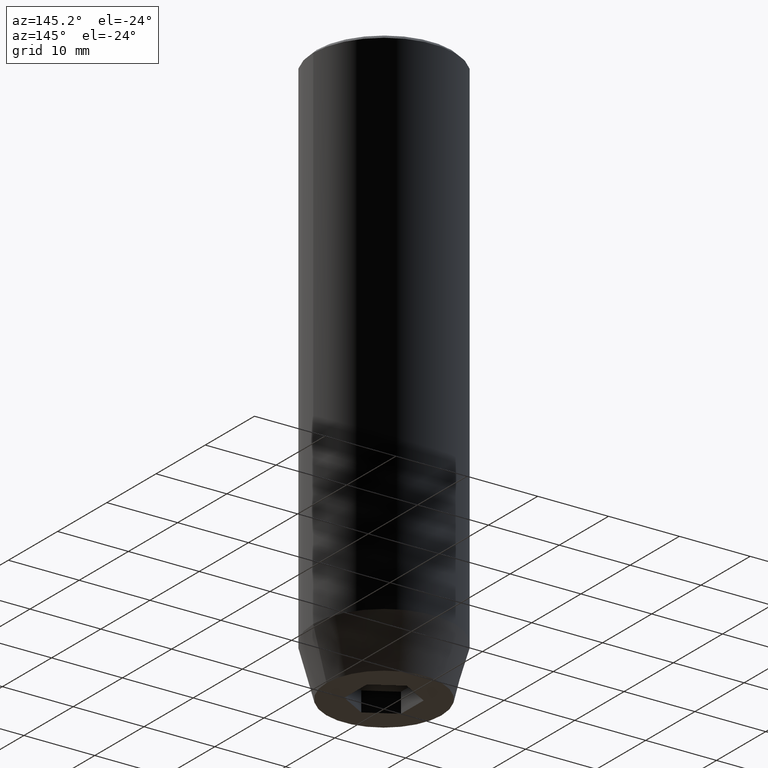
[diagram: clean part render]
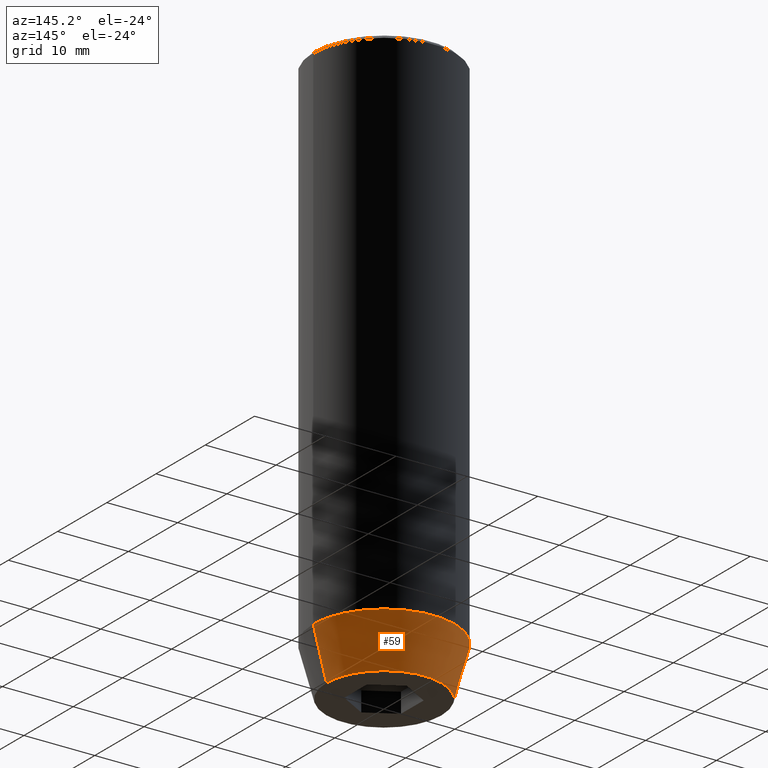
[diagram: same view with one face highlighted and labeled with its STEP entity id]
A machine part, auxiliary view. The second image highlights one B-rep face of the part: STEP entity #59.
In plain terms, the highlighted conical surface has half-angle 15 deg.
Its self-contained STEP definition (entity closure, byte-faithful):
#7 = CARTESIAN_POINT ( 'NONE',  ( -10.00000000000000000, 1.224646799147353256E-15, -73.00000000000001421 ) ) ;
#30 = ORIENTED_EDGE ( 'NONE', *, *, #369, .F. ) ;
#47 = CARTESIAN_POINT ( 'NONE',  ( 10.00000000000000000, 0.000000000000000000, -73.00000000000001421 ) ) ;
#59 = ADVANCED_FACE ( 'NONE', ( #301 ), #491, .T. ) ;
#63 = AXIS2_PLACEMENT_3D ( 'NONE', #529, #475, #468 ) ;
#91 = CARTESIAN_POINT ( 'NONE',  ( 0.000000000000000000, 0.000000000000000000, -73.00000000000001421 ) ) ;
#92 = CIRCLE ( 'NONE', #221, 10.00000000000000000 ) ;
#100 = EDGE_LOOP ( 'NONE', ( #241, #565, #30, #151 ) ) ;
#140 = DIRECTION ( 'NONE',  ( 0.2588190451025206840, 0.000000000000000000, 0.9659258262890683122 ) ) ;
#151 = ORIENTED_EDGE ( 'NONE', *, *, #323, .F. ) ;
#156 = VERTEX_POINT ( 'NONE', #230 ) ;
#171 = CARTESIAN_POINT ( 'NONE',  ( 10.00000000000000000, 0.000000000000000000, -73.00000000000001421 ) ) ;
#186 = EDGE_CURVE ( 'NONE', #211, #553, #282, .T. ) ;
#211 = VERTEX_POINT ( 'NONE', #259 ) ;
#212 = LINE ( 'NONE', #47, #518 ) ;
#221 = AXIS2_PLACEMENT_3D ( 'NONE', #316, #356, #224 ) ;
#224 = DIRECTION ( 'NONE',  ( 1.000000000000000000, 0.000000000000000000, 0.000000000000000000 ) ) ;
#230 = CARTESIAN_POINT ( 'NONE',  ( -10.00000000000000000, 1.224646799147353256E-15, -73.00000000000001421 ) ) ;
#241 = ORIENTED_EDGE ( 'NONE', *, *, #186, .T. ) ;
#259 = CARTESIAN_POINT ( 'NONE',  ( 8.124355652982140796, 0.000000000000000000, -80.00000000000001421 ) ) ;
#282 = CIRCLE ( 'NONE', #63, 8.124355652982140796 ) ;
#301 = FACE_OUTER_BOUND ( 'NONE', #100, .T. ) ;
#308 = CARTESIAN_POINT ( 'NONE',  ( -8.124355652982140796, 1.109796706851640753E-15, -80.00000000000001421 ) ) ;
#316 = CARTESIAN_POINT ( 'NONE',  ( 0.000000000000000000, 0.000000000000000000, -73.00000000000001421 ) ) ;
#322 = AXIS2_PLACEMENT_3D ( 'NONE', #91, #393, #346 ) ;
#323 = EDGE_CURVE ( 'NONE', #211, #398, #212, .T. ) ;
#346 = DIRECTION ( 'NONE',  ( 1.000000000000000000, 0.000000000000000000, 0.000000000000000000 ) ) ;
#356 = DIRECTION ( 'NONE',  ( -0.000000000000000000, -0.000000000000000000, 1.000000000000000000 ) ) ;
#369 = EDGE_CURVE ( 'NONE', #398, #156, #92, .T. ) ;
#393 = DIRECTION ( 'NONE',  ( -0.000000000000000000, -0.000000000000000000, 1.000000000000000000 ) ) ;
#398 = VERTEX_POINT ( 'NONE', #171 ) ;
#408 = EDGE_CURVE ( 'NONE', #553, #156, #447, .T. ) ;
#447 = LINE ( 'NONE', #7, #569 ) ;
#468 = DIRECTION ( 'NONE',  ( 1.000000000000000000, 0.000000000000000000, 0.000000000000000000 ) ) ;
#475 = DIRECTION ( 'NONE',  ( -0.000000000000000000, -0.000000000000000000, 1.000000000000000000 ) ) ;
#491 = CONICAL_SURFACE ( 'NONE', #322, 10.00000000000000000, 0.2617993877991493523 ) ;
#493 = DIRECTION ( 'NONE',  ( -0.2588190451025206840, 3.169619151431763092E-17, 0.9659258262890683122 ) ) ;
#518 = VECTOR ( 'NONE', #140, 1000.000000000000114 ) ;
#529 = CARTESIAN_POINT ( 'NONE',  ( 0.000000000000000000, 0.000000000000000000, -80.00000000000001421 ) ) ;
#553 = VERTEX_POINT ( 'NONE', #308 ) ;
#565 = ORIENTED_EDGE ( 'NONE', *, *, #408, .T. ) ;
#569 = VECTOR ( 'NONE', #493, 1000.000000000000114 ) ;